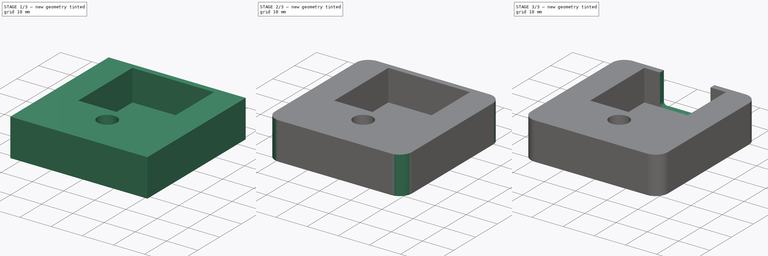
[diagram: build sequence overview — one tinted view per stage of 3, left to right]
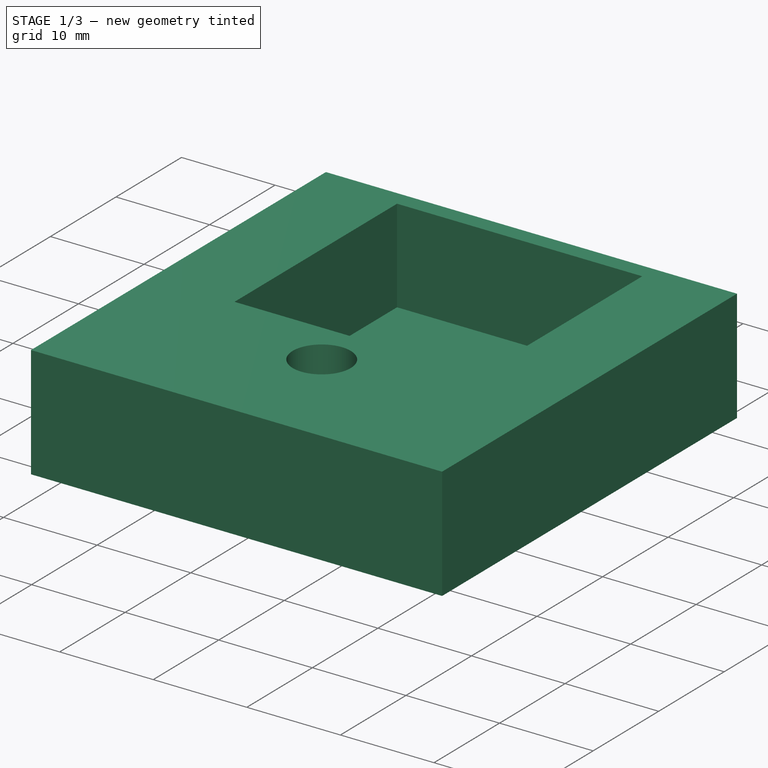
[diagram: stage 1 of 3 — iso view after this stage's code; geometry added in this stage tinted green]
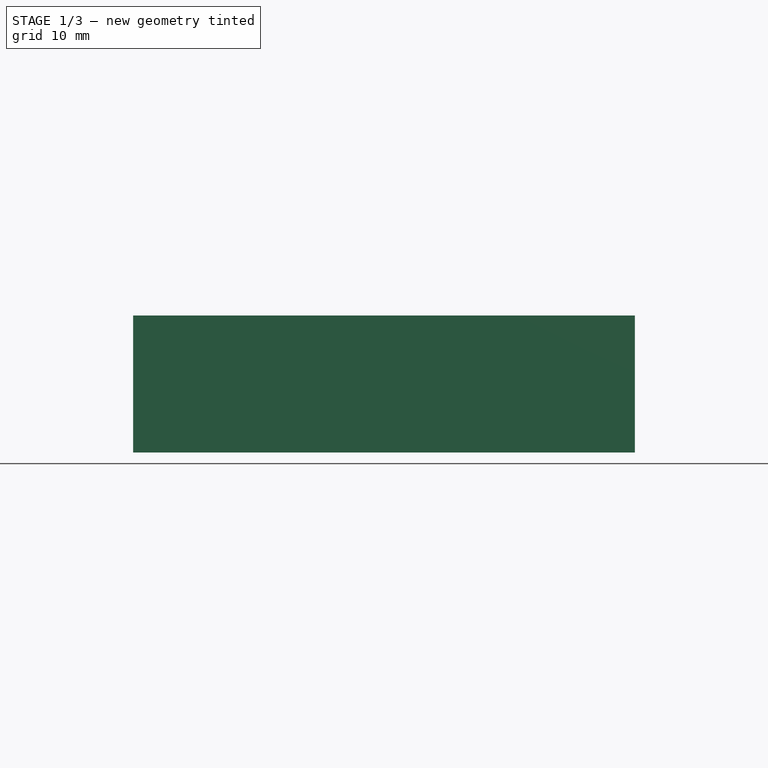
[diagram: stage 1 of 3 — front view after this stage's code; geometry added in this stage tinted green]
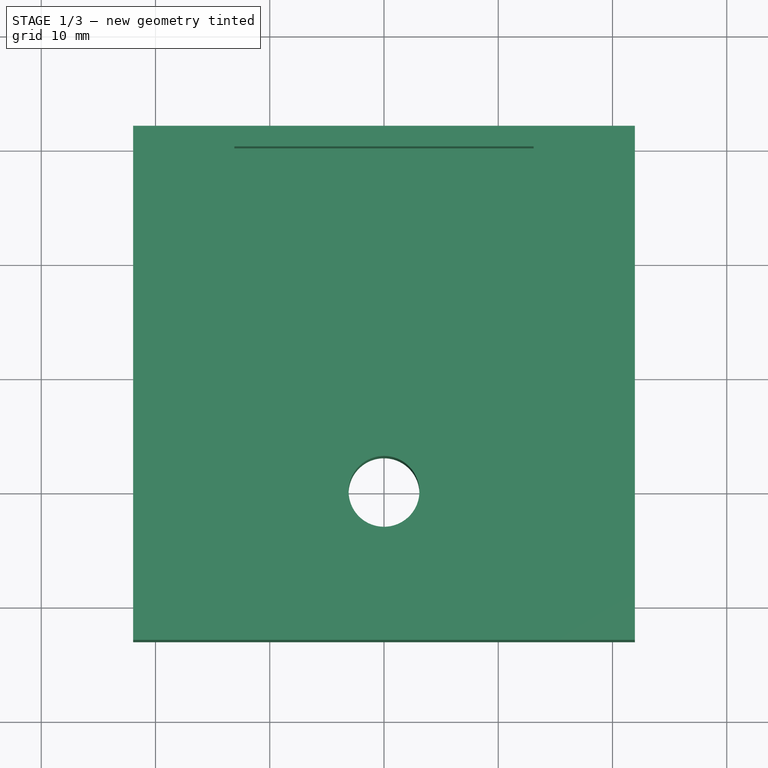
[diagram: stage 1 of 3 — top view after this stage's code; geometry added in this stage tinted green]
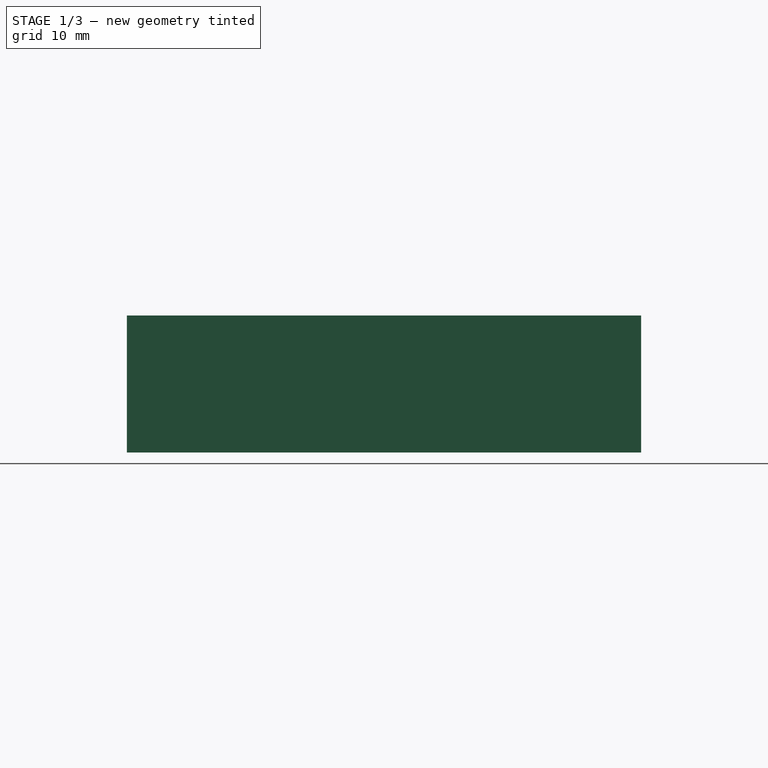
[diagram: stage 1 of 3 — right view after this stage's code; geometry added in this stage tinted green]
FCSTD DOCUMENT  (FreeCAD 0.20R29177 (Git))
Label: LED holder 1
License: All rights reserved
LicenseURL: http://en.wikipedia.org/wiki/All_rights_reserved
objects: Sketcher::SketchObject×4, PartDesign::Pocket×3, Spreadsheet::Sheet×2, PartDesign::Fillet×2, PartDesign::Pad×1, PartDesign::Body×1
note: 17 computed .brp shape members not serialized (recipe doc carries the construction recipe); baked Part::Feature solids carry a one-line shape summary decoded from their .brp

FEATURE [Sketcher::SketchObject] Sketch
  FullyConstrained = false
  MapMode = 5
  Support = -> [XY_Plane]
  expr: Constraints[19] = 2
  expr: Constraints[22] = <<Data>>.K5 + 0.6
  sketch-geometry (9):
    g0: LineSegment StartX=-30 StartY=30 StartZ=0 EndX=30 EndY=30 EndZ=0
    g1: LineSegment StartX=30 StartY=30 StartZ=0 EndX=30 EndY=-30 EndZ=0
    g2: LineSegment StartX=30 StartY=-30 StartZ=0 EndX=-30 EndY=-30 EndZ=0
    g3: LineSegment StartX=-30 StartY=-30 StartZ=0 EndX=-30 EndY=30 EndZ=0
    g4: LineSegment StartX=-21.9614 StartY=32 StartZ=0 EndX=21.9614 EndY=32 EndZ=0
    g5: LineSegment StartX=21.9614 StartY=32 StartZ=0 EndX=21.9614 EndY=-13 EndZ=0
    g6: LineSegment StartX=21.9614 StartY=-13 StartZ=0 EndX=-21.9614 EndY=-13 EndZ=0
    g7: LineSegment StartX=-21.9614 StartY=-13 StartZ=0 EndX=-21.9614 EndY=32 EndZ=0
    g8: Circle CenterX=0 CenterY=0 CenterZ=0 NormalX=0 NormalY=0 NormalZ=1 AngleXU=0 Radius=3.1
  constraints (23):
    c: Coincident(g0,g1)
    c: Coincident(g1,g2)
    c: Coincident(g2,g3)
    c: Coincident(g3,g0)
    c: Horizontal(g0)
    c: Horizontal(g2)
    c: Vertical(g1)
    c: Vertical(g3)
    c: DistanceX(g0,g0) = 60
    c: DistanceY(g1,g1) = 60
    c: Symmetric(g1,g0,g-1)
    c: Coincident(g4,g5)
    c: Coincident(g5,g6)
    c: Coincident(g6,g7)
    c: Coincident(g7,g4)
    c: Horizontal(g4)
    c: Vertical(g5)
    c: Vertical(g7)
    c: Symmetric(g6,g5,g-2)
    c: DistanceY(g0,g4) = 2
    c: DistanceY(g6,g-1) = 13
    c: Coincident(g8,g-1)
    c: Diameter(g8) = 6.2
FEATURE [PartDesign::Pad] Pad
  Direction = (0,0,1)
  Length = 12
  Length2 = 10
  Profile = -> Sketch
  ReferenceAxis = -> Sketch [N_Axis]
  Type = 0
FEATURE [Spreadsheet::Sheet] Sheet1
  cells = A1=Part; B1=SP1; C1=SP2; D1=SP3; E1=SP4; F1=SP5; G1=Size (mm); H1=Shape; I1=External References; N1=Design specification; P1=unit; A2=Sensor case; B2=Sensor Holder; C2=Outer; F2=Height; G2==2 * L24; I2=Part; J2=Subpart; K2=Parameter; N2=Max wavelength; O2=800; P2=nm; F3=Base; G3==L4 + O5 * 2 + O6; I3=Camera; J3=PCB; K3=Height; L3=23.7; N3=Min wavelength; O3=350; P3=nm; F4=Thickness; G4==L5 + 2 * O5 + O6; K4=Base; L4=24.8; N4=Max colimated light angle; O4=0.1; P4=deg; F5=Angle; G5==O7 + O9 / 2; K5=Thickness; L5=0.9; N5=wall Thickness; O5=2; P5=mm; F6=Distance to origin; G6==L13 * 0.5 * O11 / tan(1rad * Q9 / 2); J6=Sensor casing; K6=Base; L6=8.44; N6=tolerance; O6=0.2; P6=mm; C7=inner; F7=Height; G7==L9 + L24; K7=Height; L7=8.4; N7=min angle; O7==pi / 180deg * asin(O3 / $L$19) * 180 / pi; P7=deg; Q7==pi / 180deg * asin(O3 / $L$19); F8=Base; G8==L4 + $O$6; K8=Thickness; L8=3; N8=max angle; O8==pi / 180deg * asin(O2 / $L$19) * 180 / pi; P8=deg; Q8==pi / 180deg * asin(O2 / $L$19); F9=Thickness; G9==L5 + $O$6; K9=Vertical center rel to bottom; L9=13.42; N9=delta min max; O9==O8 - O7; P9=deg; Q9==Q8 - Q7; F10=side; G10==L16; K10=Vertical center rel to top (socket); L10==L3 - L9; N10=fraction of margin sensor as buffer; O10=0.05; B11=Slit Holder; F11=wall thickness; G11==O5 * 2 + L16 + O6; K11=side margin; L11=1.2; N11=fraction of sensor used; O11==1 - O10; F12=Base; G12==L15 + O6 + O5 * 5; J12=Sensor; K12=Height; L12=2.74; N12=N battery; O12=4; F13=Height; G13==G2; K13=Base; L13=3.76; N13=Battery per side; O13=2; F14=slit aperture; G14==L15 + O6; I14=Slit; J14=Structure; K14=Height; L14==L3; F15=Distance between slits; G15==L18 / tan(1rad * O4 * pi / 180); K15=Base; L15=10; B16=Connector to cell; C16=lateral socket; F16=Height; G16==L20 + O6; K16=Thickness; L16=1; F17=Base; G17==L21 + O6; K17=Vertical Apterure; L17==L12; F18=Depth; G18==L22 + O6; K18=Horizontal aperture; L18=0.06; F19=Distance from center; G19==L23 + 1; I19=Diffraction Gratting; K19=lines per mm; L19=1000; D20=opening for tube; F20=Height; G20=1.5; I20=Front Cap; J20=Socket imput; K20=Height; L20=26; F21=Base; G21=8.550000000000001; H21=(from edge to edge); K21=Base; L21=24.6; F22=Depth; G22==G18; K22=Thickness; L22=9.800000000000001; C23=optical window; F23=Diameter; G23=5; K23=Distance to center; L23=4; F24=Depth; G24=5; I24=Battery; K24=Height; L24=23; K25=Base; L25=23; K26=Thickness; L26=80
FEATURE [Spreadsheet::Sheet] Data
  cells = A1=Part; B1=SP1; C1=SP2; D1=SP3; E1=SP4; F1=SP5; G1=Size (mm); H1=Shape; I1=External References; N1=Design specification; A2=Front Cap; B2=Base ; F2=Height; G2==P8; H2=Square; I2=Object; J2=Subpart; K2=Measure (mm); L2=Extra margin; N2=General; O2=Subpart; P2=Measure (mm); F3=Width; G3==P9; I3=LED; J3=Length with contacts; K3=15.8; L3=2; O3=General tolerance; P3=0.2; F4=Depth; G4=3; I4=LED; J4=Diameter body; K4=8.119999999999999; O4=Wall thickness; P4=2; C5=Central Hole; F5=Diameter; G5==K10 - P3 - P4 * 2; H5=Circle; I5=LED; J5=Diameter Lens; K5=5.6; O5=Minimal thickness; P5=1; F6=Depth; G6==G4; I6=LED; J6=Total Heightt; K6=5.8; N6=Cell; O6=Light Path length; P6=50; B7=Sample input; C7=Sample input Overall structure; F7=Height; G7==G2 / 2 - P7 / 2; H7=Rectangle; I7=LED; J7=Body Heightt till contact; K7=1.5; O7=Light Path width; P7=5; F8=Width; G8==K14 + P3 + 2 * P5; I8=Glass Tube; J8=Exterior Diameter; K8=20.2; N8=Slide; O8=Height; P8=60; F9=Depth; G9==K14 + P3 + 2 * P5 + G4; I9=Glass Tube; J9=Wall Thickness; K9=1.58; O9=Width; P9=60; C10=Tubing Connector; D10=Stopper; F10=Diameter; G10==K14 + P3 * 2; H10=Circle; I10=Glass Tube; J10=Interior Diameter; K10==K8 - 2 * K9; O10=Central Hole; P10=16; F11=Depth; G11==K12 / 2; I11=Glass Tube; J11=Length; K11=35; N11=LED; O11=Distance to end of cell; P11==K10 / 2; D12=Connector; F12=Diameter; G12==K12 + P3; H12=Circle; I12=Tubing connector; J12=Connector Diameter; K12=5.1; O12=octagon side size; P12=20; F13=Depth; G13==K13 / 3; I13=Tubing connector; J13=Connector Heightt; K13=13; B14=Window; F14=Height; G14==K16 + P3 * 2; H14=Square; I14=Tubing connector; J14=Stopper Diameter; K14=7.9; F15=Width; G15==P3 * 2 + K17; I15=Tubing connector; J15=Stopper Heightt; K15=2.7; F16=Depth; G16==G9 - 2; I16=Glass window; J16=Width; K16=25.6; F17=Distance from edge; G17=1.5; I17=Glass window; J17=Heightt; K17=25.6; B18=Tube Holder; F18=Outer Diameter; G18==K10 - P3 * 1.1; H18=Two concentric Circles; I18=Glass window; J18=Thickness; K18=1; F19=Inner Diameter; G19==G5; F20=Length; G20==P11 - K5 / 2 - G4 + K18; B21=LED holder; C21=interior; F21=Interior face size; G21==P12 + P3 * 1.5; H21=Two concentric Octagons; C22=exterior; F22=Distance between exterior and interior; G22==P4
FEATURE [Sketcher::SketchObject] Sketch001
  ExternalGeometry = -> [Pad]
  FullyConstrained = true
  MapMode = 5
  Placement = pos=(0,0,12) rot=(0,0,1;0rad)
  Support = -> [Pad]
  expr: Constraints[10] = 30 - <<Sheet1>>.L21
  expr: Constraints[8] = <<Sheet1>>.G16
  expr: Constraints[9] = <<Sheet1>>.G17
  sketch-geometry (4):
    g0: LineSegment StartX=-13.1 StartY=30.2 StartZ=0 EndX=13.1 EndY=30.2 EndZ=0
    g1: LineSegment StartX=13.1 StartY=30.2 StartZ=0 EndX=13.1 EndY=5.4 EndZ=0
    g2: LineSegment StartX=13.1 StartY=5.4 StartZ=0 EndX=-13.1 EndY=5.4 EndZ=0
    g3: LineSegment StartX=-13.1 StartY=5.4 StartZ=0 EndX=-13.1 EndY=30.2 EndZ=0
  constraints (11):
    c: Coincident(g0,g1)
    c: Coincident(g1,g2)
    c: Coincident(g2,g3)
    c: Coincident(g3,g0)
    c: Horizontal(g0)
    c: Vertical(g1)
    c: Vertical(g3)
    c: Symmetric(g2,g1,g-2)
    c: DistanceX(g2,g2) = 26.2
    c: DistanceY(g1,g1) = 24.8
    c: DistanceY(g-3,g1) = 5.4
FEATURE [PartDesign::Pocket] Pocket
  BaseFeature = -> Pad
  Direction = (0,0,-1)
  Length = 10
  Length2 = 5
  Profile = -> Sketch001
  ReferenceAxis = -> Sketch001 [N_Axis]
  Type = 0
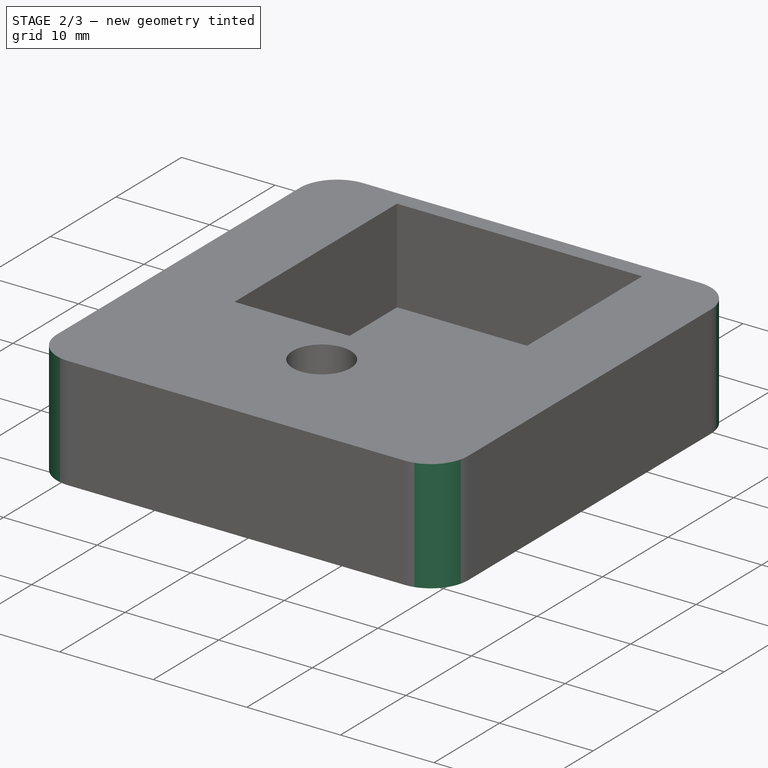
[diagram: stage 2 of 3 — iso view after this stage's code; geometry added in this stage tinted green]
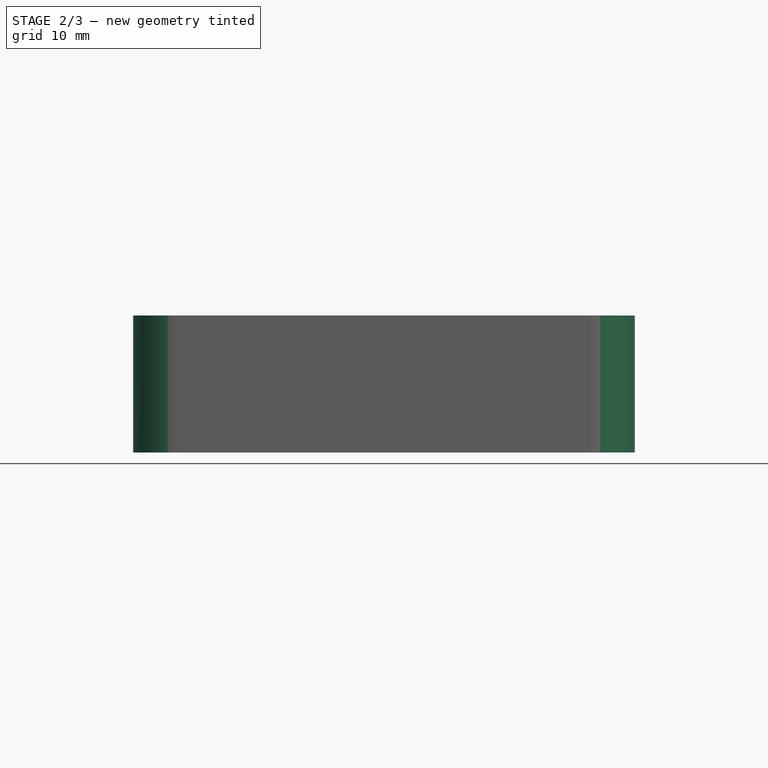
[diagram: stage 2 of 3 — front view after this stage's code; geometry added in this stage tinted green]
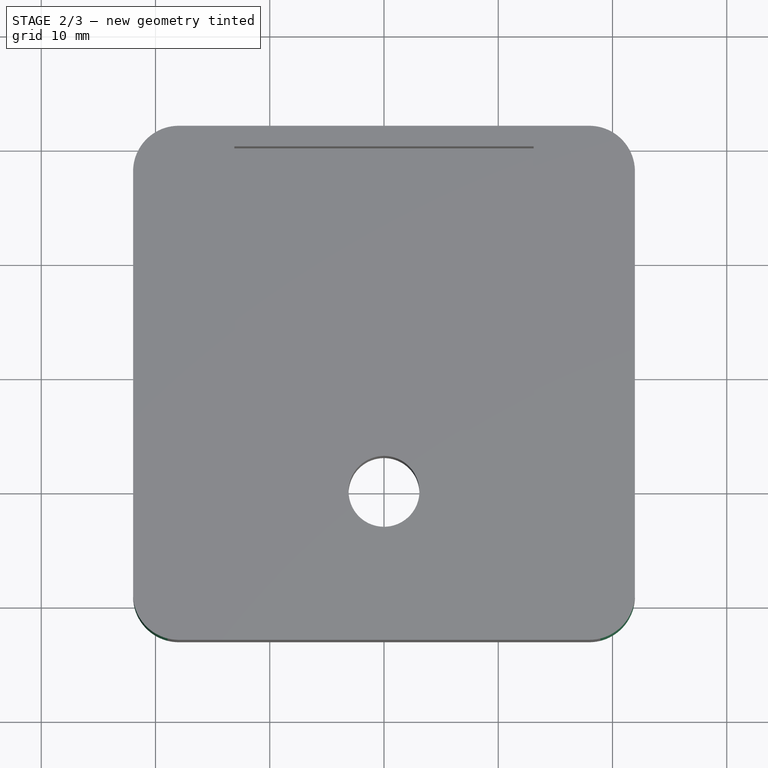
[diagram: stage 2 of 3 — top view after this stage's code; geometry added in this stage tinted green]
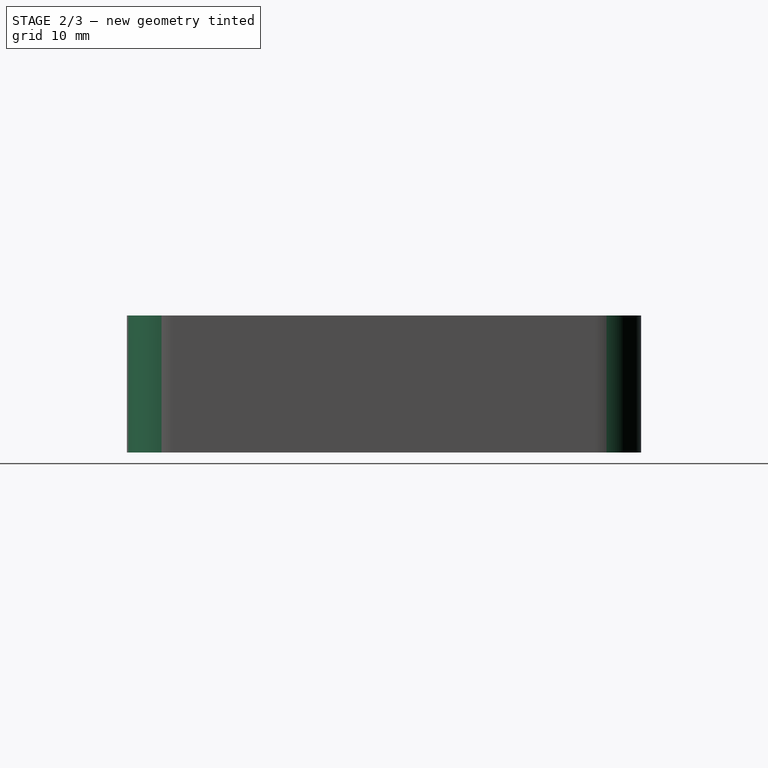
[diagram: stage 2 of 3 — right view after this stage's code; geometry added in this stage tinted green]
FEATURE [Sketcher::SketchObject] Sketch002
  FullyConstrained = true
  MapMode = 5
  Placement = pos=(0,0,0) rot=(1,0,0;3.14159rad)
  Support = -> [Pocket]
  sketch-geometry (1):
    g0: Circle CenterX=0 CenterY=0 CenterZ=0 NormalX=0 NormalY=0 NormalZ=1 AngleXU=0 Radius=5
  constraints (2):
    c: Coincident(g0,g-1)
    c: Diameter(g0) = 10
FEATURE [PartDesign::Pocket] Pocket001
  BaseFeature = -> Pocket
  Direction = (0,0,1)
  Length = 1
  Length2 = 5
  Profile = -> Sketch002
  ReferenceAxis = -> Sketch002 [N_Axis]
  Type = 0
FEATURE [PartDesign::Fillet] Fillet
  Base = -> Pocket001 [Edge2,Edge1,Edge8,Edge5]
  BaseFeature = -> Pocket001
  Radius = 4
  SupportTransform = false
  UseAllEdges = false
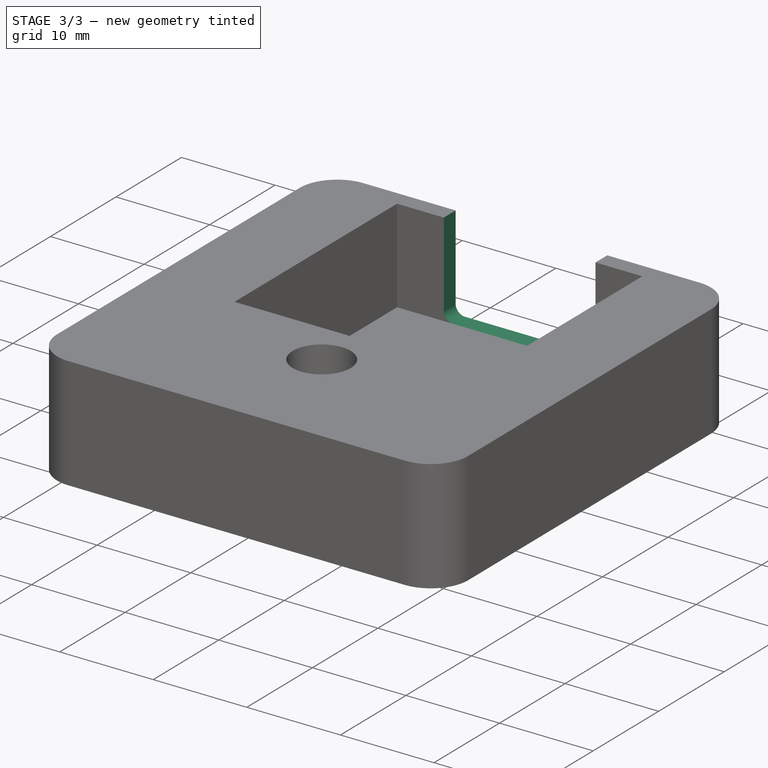
[diagram: stage 3 of 3 — iso view after this stage's code; geometry added in this stage tinted green]
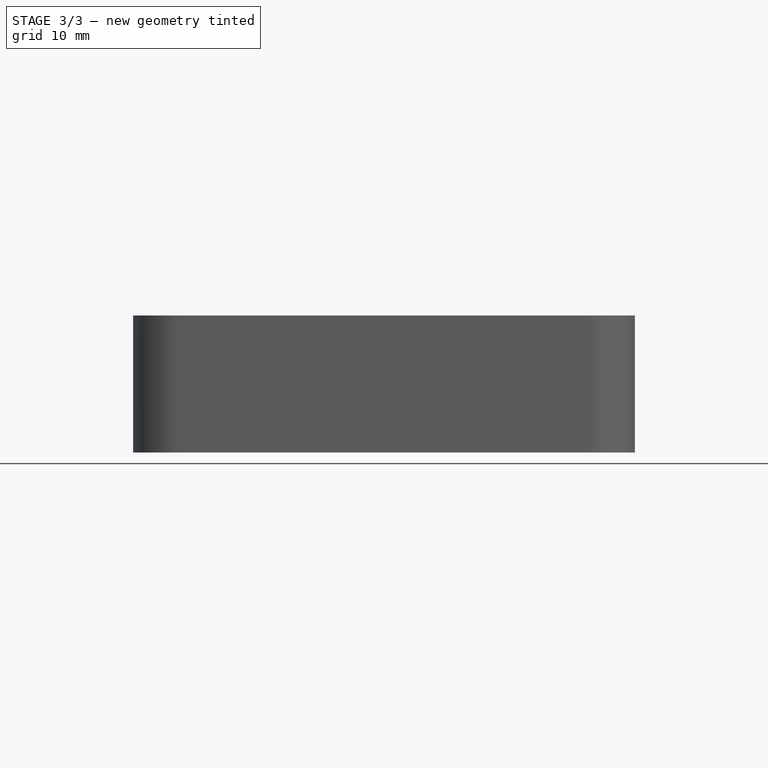
[diagram: stage 3 of 3 — front view after this stage's code; geometry added in this stage tinted green]
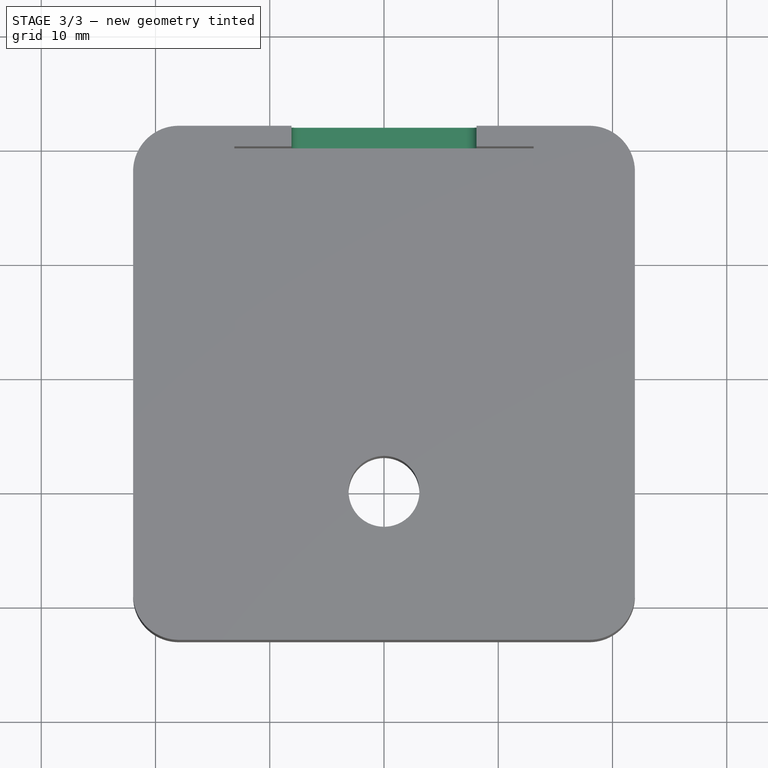
[diagram: stage 3 of 3 — top view after this stage's code; geometry added in this stage tinted green]
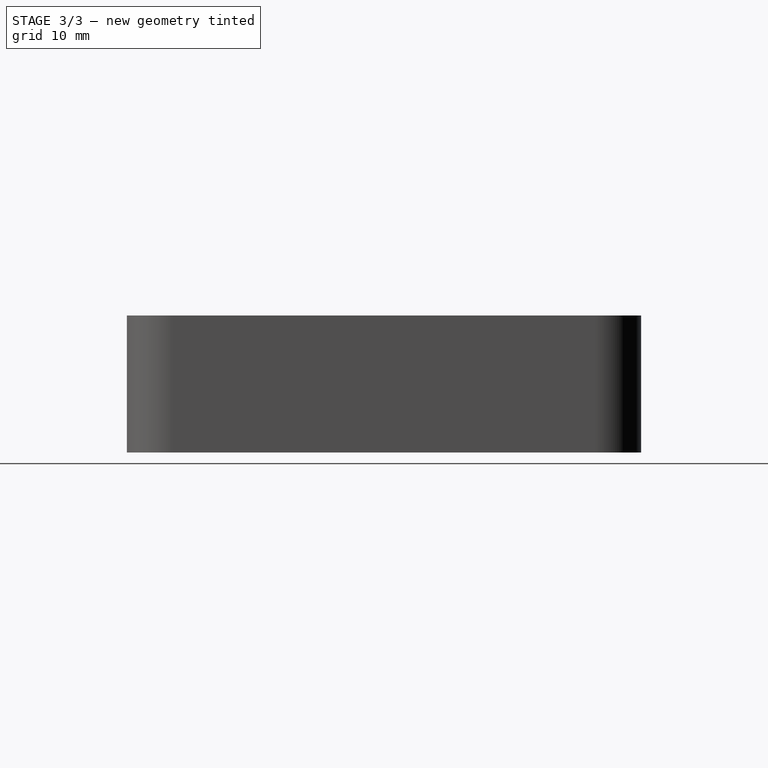
[diagram: stage 3 of 3 — right view after this stage's code; geometry added in this stage tinted green]
FEATURE [Sketcher::SketchObject] Sketch003
  ExternalGeometry = -> [Fillet]
  FullyConstrained = true
  MapMode = 5
  Placement = pos=(0,30.2,0) rot=(1,0,0;1.5708rad)
  Support = -> [Fillet]
  sketch-geometry (4):
    g0: LineSegment StartX=-8.1 StartY=12 StartZ=0 EndX=8.1 EndY=12 EndZ=0
    g1: LineSegment StartX=8.1 StartY=12 StartZ=0 EndX=8.1 EndY=2 EndZ=0
    g2: LineSegment StartX=8.1 StartY=2 StartZ=0 EndX=-8.1 EndY=2 EndZ=0
    g3: LineSegment StartX=-8.1 StartY=2 StartZ=0 EndX=-8.1 EndY=12 EndZ=0
  constraints (11):
    c: Coincident(g0,g1)
    c: Coincident(g1,g2)
    c: Coincident(g2,g3)
    c: Coincident(g3,g0)
    c: Horizontal(g2)
    c: Vertical(g1)
    c: Vertical(g3)
    c: PointOnObject(g0,g-5)
    c: PointOnObject(g1,g-6)
    c: Symmetric(g0,g0,g-2)
    c: DistanceX(g-5,g0) = 5
FEATURE [PartDesign::Pocket] Pocket002
  BaseFeature = -> Fillet
  Direction = (0,1,-2e-16)
  Length = 5
  Length2 = 5
  Profile = -> Sketch003
  ReferenceAxis = -> Sketch003 [N_Axis]
  Type = 0
FEATURE [PartDesign::Fillet] Fillet001
  Base = -> Pocket002 [Edge34,Edge36]
  BaseFeature = -> Pocket002
  Radius = 1
  SupportTransform = false
  UseAllEdges = false
FEATURE [PartDesign::Body] Body
  Group = -> [Sketch,Pad,Sketch001,Pocket,Sketch002,Pocket001,Fillet,Sketch003,Pocket002,Fillet001]
  Origin = -> Origin
  Tip = -> Fillet001
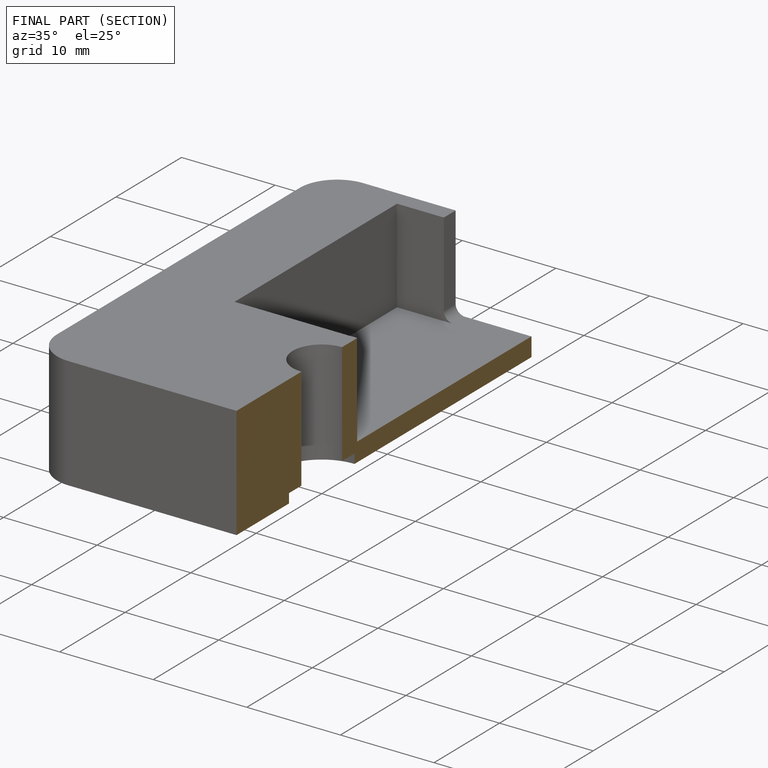
[diagram: finished part — half-section view (interior)]
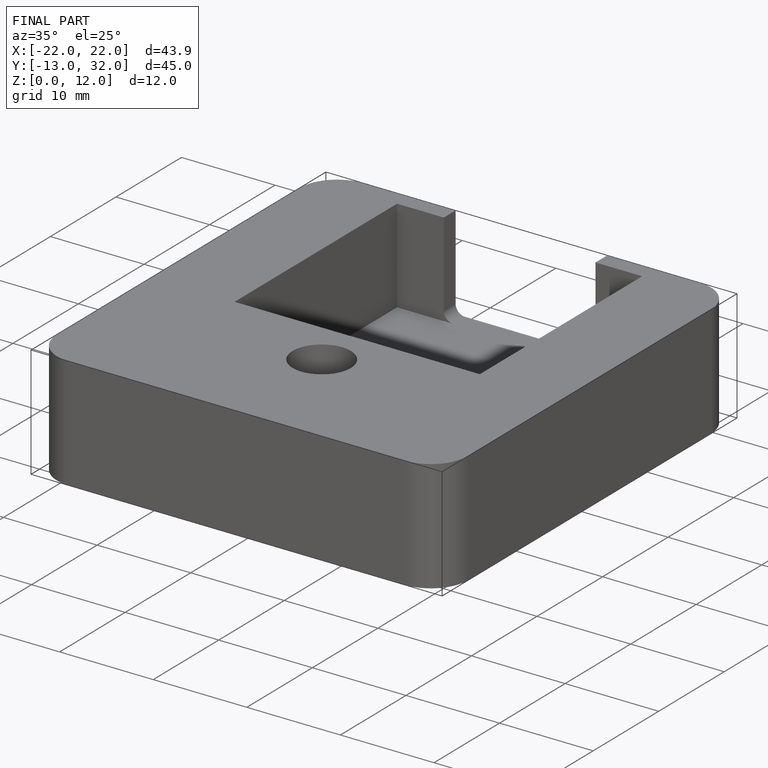
[diagram: finished part — iso view with bounding-box wireframe]
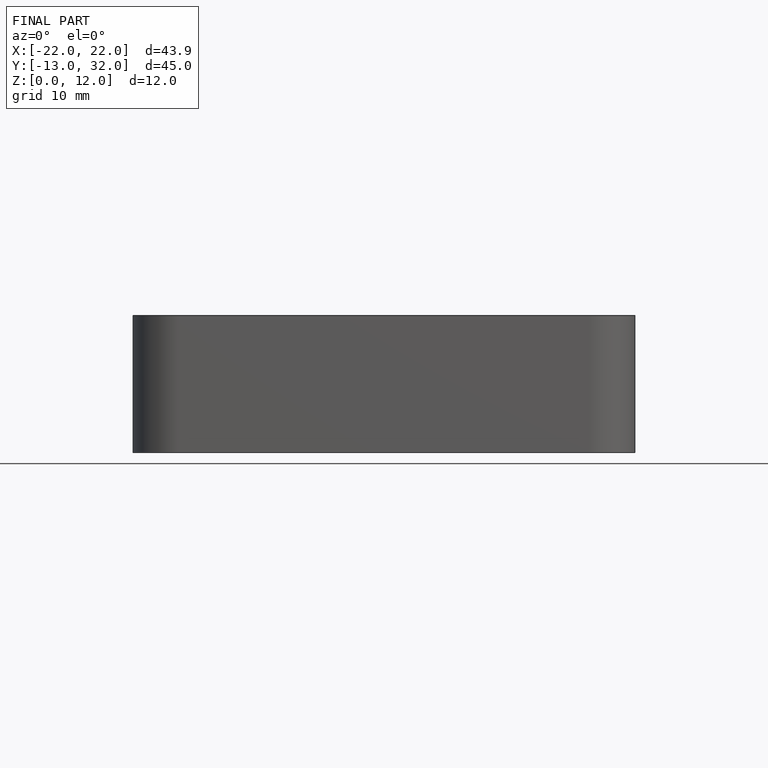
[diagram: finished part — front view with bounding-box wireframe]
